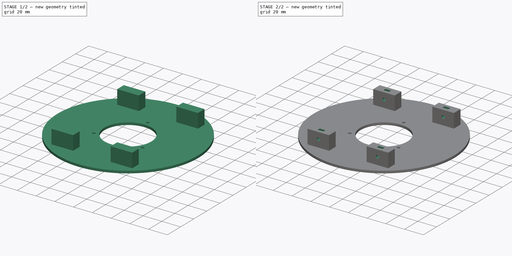
[diagram: build sequence overview — one tinted view per stage of 2, left to right]
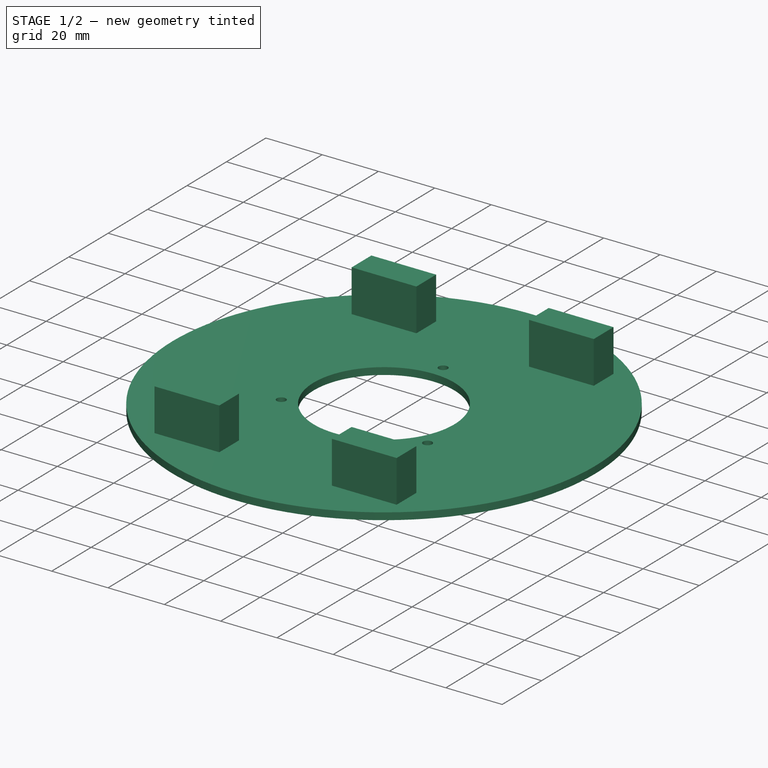
[diagram: stage 1 of 2 — iso view after this stage's code; geometry added in this stage tinted green]
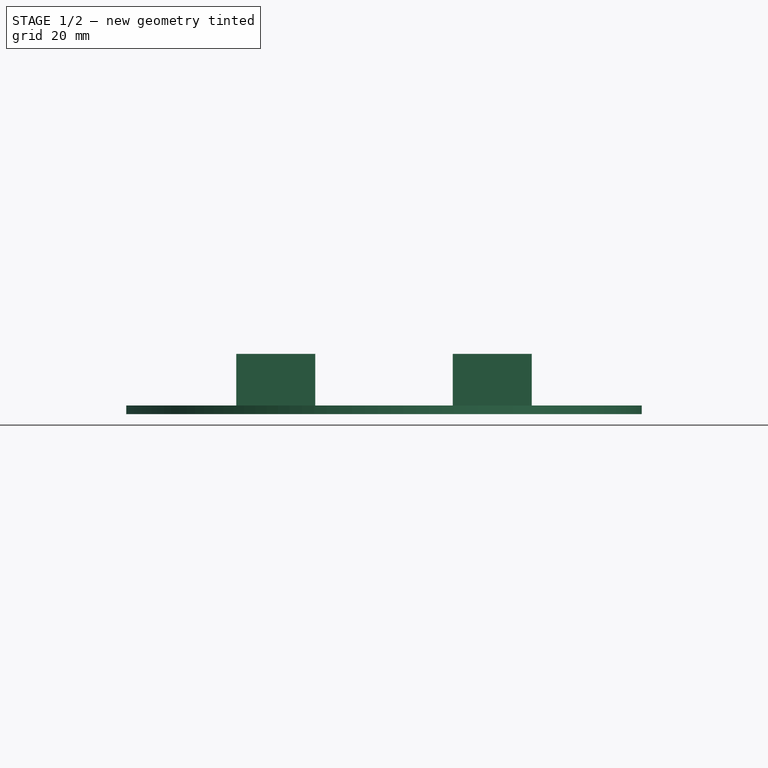
[diagram: stage 1 of 2 — front view after this stage's code; geometry added in this stage tinted green]
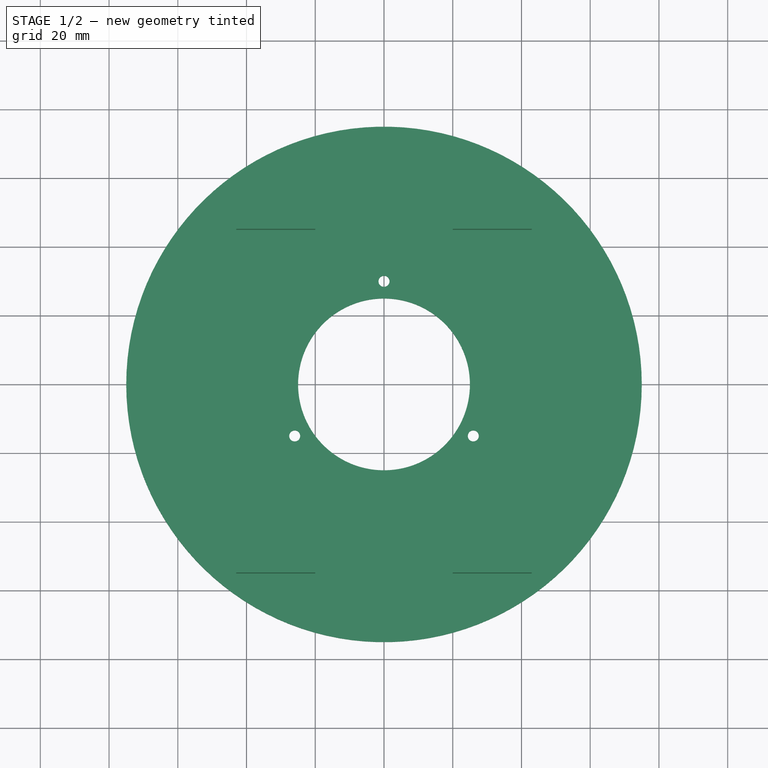
[diagram: stage 1 of 2 — top view after this stage's code; geometry added in this stage tinted green]
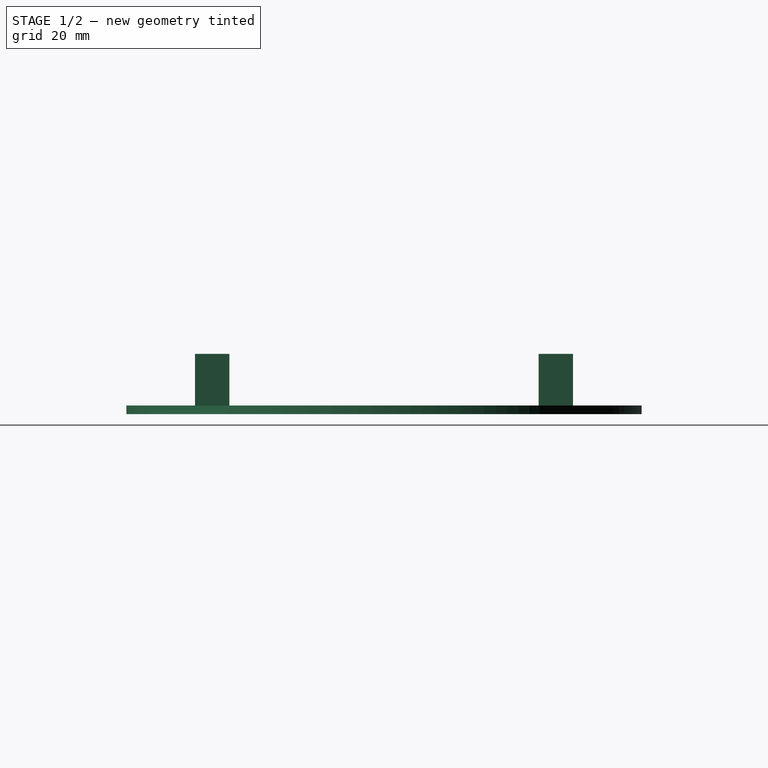
[diagram: stage 1 of 2 — right view after this stage's code; geometry added in this stage tinted green]
FCSTD DOCUMENT  (FreeCAD 0.16RUnknown)
Label: Art1TopP2
License: All rights reserved
LicenseURL: http://en.wikipedia.org/wiki/All_rights_reserved
objects: Sketcher::SketchObject×4, PartDesign::Pad×2, PartDesign::Pocket×2
note: 12 computed .brp shape members not serialized (recipe doc carries the construction recipe); baked Part::Feature solids carry a one-line shape summary decoded from their .brp

FEATURE [Sketcher::SketchObject] Sketch
  sketch-geometry (9):
    g0: Circle CenterX=0 CenterY=0 CenterZ=0 NormalX=0 NormalY=0 NormalZ=1 Radius=75
    g1: Circle CenterX=0 CenterY=0 CenterZ=0 NormalX=0 NormalY=0 NormalZ=1 Radius=25
    g2: Circle [constr] CenterX=0 CenterY=0 CenterZ=0 NormalX=0 NormalY=0 NormalZ=1 Radius=30
    g3: Circle CenterX=0 CenterY=30 CenterZ=0 NormalX=0 NormalY=0 NormalZ=1 Radius=1.6
    g4: Circle CenterX=-25.9808 CenterY=-15 CenterZ=0 NormalX=0 NormalY=0 NormalZ=1 Radius=1.6
    g5: Circle CenterX=25.9808 CenterY=-15 CenterZ=0 NormalX=0 NormalY=0 NormalZ=1 Radius=1.6
    g6: LineSegment [constr] StartX=0 StartY=30 StartZ=0 EndX=0 EndY=0 EndZ=0
    g7: LineSegment [constr] StartX=-25.9808 StartY=-15 StartZ=0 EndX=0 EndY=0 EndZ=0
    g8: LineSegment [constr] StartX=0 StartY=0 StartZ=0 EndX=25.9808 EndY=-15 EndZ=0
  constraints (22):
    c: Coincident(g0,g-1)
    c: PointOnObject(g1,g-1)
    c: Coincident(g0,g1)
    c: Coincident(g2,g-1)
    c: PointOnObject(g3,g2)
    c: PointOnObject(g4,g2)
    c: PointOnObject(g5,g2)
    c: Radius(g0) = 75
    c: Radius(g1) = 25
    c: Radius(g2) = 30
    c: Equal(g3,g4)
    c: Equal(g4,g5)
    c: Radius(g3) = 1.6
    c: Coincident(g6,g3)
    c: Coincident(g6,g-1)
    c: Coincident(g7,g4)
    c: Coincident(g7,g-1)
    c: Coincident(g8,g-1)
    c: Coincident(g8,g5)
    c: Angle(g6,g7) = 2.0944
    c: Angle(g7,g8) = 2.0944
    c: PointOnObject(g3,g-2)
FEATURE [PartDesign::Pad] Pad  label="base"
  Length = 2.5
  Length2 = 100
  Sketch = -> Sketch
  Type = 0
FEATURE [Sketcher::SketchObject] Sketch001
  Placement = pos=(0,0,2.5) rot=(0,0,1;0rad)
  Support = -> Pad [Face7]
  sketch-geometry (16):
    g0: LineSegment StartX=-43 StartY=55 StartZ=0 EndX=-20 EndY=55 EndZ=0
    g1: LineSegment StartX=-20 StartY=55 StartZ=0 EndX=-20 EndY=45 EndZ=0
    g2: LineSegment StartX=-20 StartY=45 StartZ=0 EndX=-43 EndY=45 EndZ=0
    g3: LineSegment StartX=-43 StartY=45 StartZ=0 EndX=-43 EndY=55 EndZ=0
    g4: LineSegment StartX=20 StartY=55 StartZ=0 EndX=43 EndY=55 EndZ=0
    g5: LineSegment StartX=43 StartY=55 StartZ=0 EndX=43 EndY=45 EndZ=0
    g6: LineSegment StartX=43 StartY=45 StartZ=0 EndX=20 EndY=45 EndZ=0
    g7: LineSegment StartX=20 StartY=45 StartZ=0 EndX=20 EndY=55 EndZ=0
    g8: LineSegment StartX=-43 StartY=-45 StartZ=0 EndX=-20 EndY=-45 EndZ=0
    g9: LineSegment StartX=-20 StartY=-45 StartZ=0 EndX=-20 EndY=-55 EndZ=0
    g10: LineSegment StartX=-20 StartY=-55 StartZ=0 EndX=-43 EndY=-55 EndZ=0
    g11: LineSegment StartX=-43 StartY=-55 StartZ=0 EndX=-43 EndY=-45 EndZ=0
    g12: LineSegment StartX=20 StartY=-45 StartZ=0 EndX=43 EndY=-45 EndZ=0
    g13: LineSegment StartX=43 StartY=-45 StartZ=0 EndX=43 EndY=-55 EndZ=0
    g14: LineSegment StartX=43 StartY=-55 StartZ=0 EndX=20 EndY=-55 EndZ=0
    g15: LineSegment StartX=20 StartY=-55 StartZ=0 EndX=20 EndY=-45 EndZ=0
  constraints (45):
    c: Coincident(g0,g1)
    c: Coincident(g1,g2)
    c: Coincident(g2,g3)
    c: Coincident(g3,g0)
    c: Horizontal(g0)
    c: Horizontal(g2)
    c: Vertical(g1)
    c: Vertical(g3)
    c: Coincident(g4,g5)
    c: Coincident(g5,g6)
    c: Coincident(g6,g7)
    c: Coincident(g7,g4)
    c: Horizontal(g4)
    c: Horizontal(g6)
    c: Vertical(g5)
    c: Vertical(g7)
    c: Coincident(g8,g9)
    c: Coincident(g9,g10)
    c: Coincident(g10,g11)
    c: Coincident(g11,g8)
    c: Horizontal(g8)
    c: Horizontal(g10)
    c: Vertical(g9)
    c: Vertical(g11)
    c: Coincident(g12,g13)
    c: Coincident(g13,g14)
    c: Coincident(g14,g15)
    c: Coincident(g15,g12)
    c: Horizontal(g12)
    c: Horizontal(g14)
    c: Vertical(g13)
    c: Vertical(g15)
    c: Equal(g4,g0)
    c: Equal(g3,g7)
    c: Equal(g8,g12)
    c: Equal(g11,g15)
    c: Equal(g0,g8)
    c: Equal(g3,g11)
    c: DistanceX(g4,g4) = 23
    c: DistanceY(g5,g5) = 10
    c: Symmetric(g0,g4,g-2)
    c: Symmetric(g1,g8,g-1)
    c: Symmetric(g8,g12,g-2)
    c: DistanceX(g6) = 20
    c: DistanceY(g6) = 45
FEATURE [PartDesign::Pad] Pad001  label="cubes"
  Length = 15
  Length2 = 100
  Sketch = -> Sketch001
  Type = 0
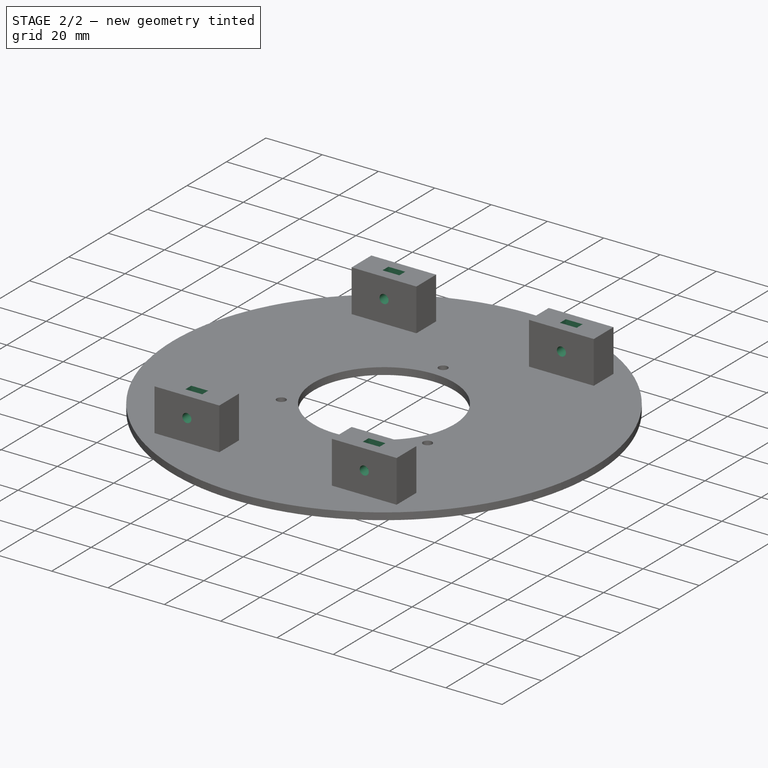
[diagram: stage 2 of 2 — iso view after this stage's code; geometry added in this stage tinted green]
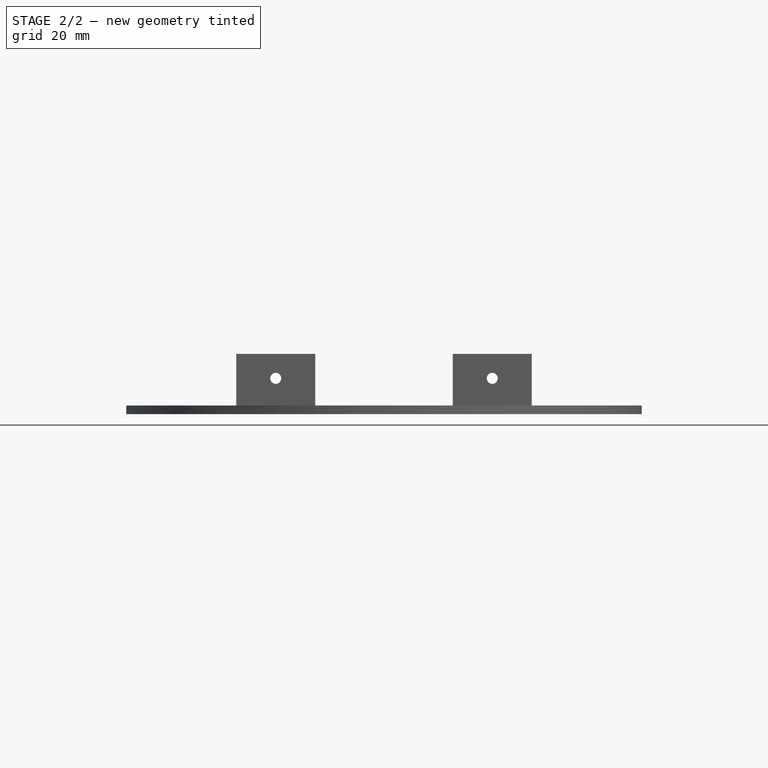
[diagram: stage 2 of 2 — front view after this stage's code; geometry added in this stage tinted green]
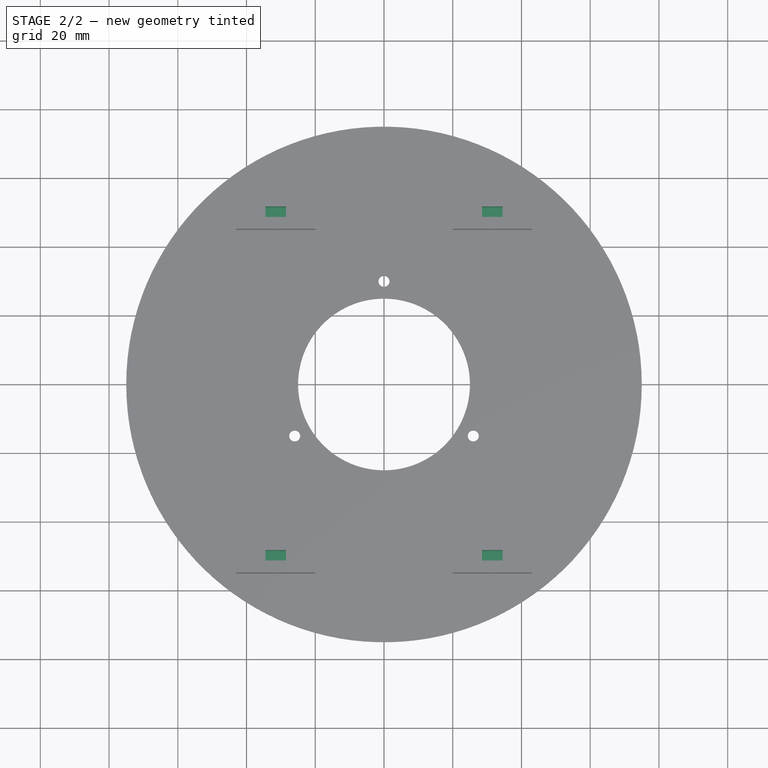
[diagram: stage 2 of 2 — top view after this stage's code; geometry added in this stage tinted green]
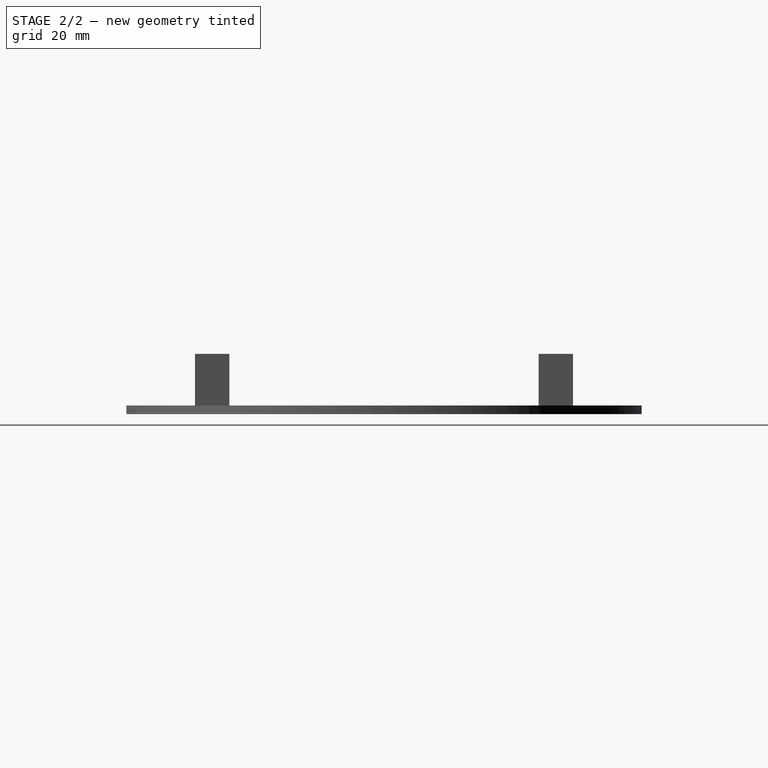
[diagram: stage 2 of 2 — right view after this stage's code; geometry added in this stage tinted green]
FEATURE [Sketcher::SketchObject] Sketch002
  Placement = pos=(0,-55,0) rot=(1,0,0;1.5708rad)
  Support = -> Pad001 [Face21]
  sketch-geometry (2):
    g0: Circle CenterX=31.5 CenterY=10.4 CenterZ=0 NormalX=0 NormalY=0 NormalZ=1 Radius=1.6
    g1: Circle CenterX=-31.5 CenterY=10.4 CenterZ=0 NormalX=0 NormalY=0 NormalZ=1 Radius=1.6
  constraints (5):
    c: Radius(g0) = 1.6
    c: DistanceX(g0) = 31.5
    c: DistanceY(g0) = 10.4
    c: Equal(g1,g0)
    c: Symmetric(g0,g1,g-2)
FEATURE [PartDesign::Pocket] Pocket  label="cylindricalHoles"
  Length = 5
  Sketch = -> Sketch002
  Type = 1
FEATURE [Sketcher::SketchObject] Sketch003
  Placement = pos=(0,0,17.5) rot=(0,0,1;0rad)
  Support = -> Pocket [Face30]
  sketch-geometry (16):
    g0: LineSegment StartX=28.5 StartY=-48.5 StartZ=0 EndX=34.5 EndY=-48.5 EndZ=0
    g1: LineSegment StartX=34.5 StartY=-48.5 StartZ=0 EndX=34.5 EndY=-51.5 EndZ=0
    g2: LineSegment StartX=34.5 StartY=-51.5 StartZ=0 EndX=28.5 EndY=-51.5 EndZ=0
    g3: LineSegment StartX=28.5 StartY=-51.5 StartZ=0 EndX=28.5 EndY=-48.5 EndZ=0
    g4: LineSegment StartX=-34.5 StartY=-48.5 StartZ=0 EndX=-28.5 EndY=-48.5 EndZ=0
    g5: LineSegment StartX=-28.5 StartY=-48.5 StartZ=0 EndX=-28.5 EndY=-51.5 EndZ=0
    g6: LineSegment StartX=-28.5 StartY=-51.5 StartZ=0 EndX=-34.5 EndY=-51.5 EndZ=0
    g7: LineSegment StartX=-34.5 StartY=-51.5 StartZ=0 EndX=-34.5 EndY=-48.5 EndZ=0
    g8: LineSegment StartX=28.5 StartY=51.5 StartZ=0 EndX=34.5 EndY=51.5 EndZ=0
    g9: LineSegment StartX=34.5 StartY=51.5 StartZ=0 EndX=34.5 EndY=48.5 EndZ=0
    g10: LineSegment StartX=34.5 StartY=48.5 StartZ=0 EndX=28.5 EndY=48.5 EndZ=0
    g11: LineSegment StartX=28.5 StartY=48.5 StartZ=0 EndX=28.5 EndY=51.5 EndZ=0
    g12: LineSegment StartX=-34.5 StartY=51.5 StartZ=0 EndX=-28.5 EndY=51.5 EndZ=0
    g13: LineSegment StartX=-28.5 StartY=51.5 StartZ=0 EndX=-28.5 EndY=48.5 EndZ=0
    g14: LineSegment StartX=-28.5 StartY=48.5 StartZ=0 EndX=-34.5 EndY=48.5 EndZ=0
    g15: LineSegment StartX=-34.5 StartY=48.5 StartZ=0 EndX=-34.5 EndY=51.5 EndZ=0
  constraints (45):
    c: Coincident(g0,g1)
    c: Coincident(g1,g2)
    c: Coincident(g2,g3)
    c: Coincident(g3,g0)
    c: Horizontal(g0)
    c: Horizontal(g2)
    c: Vertical(g1)
    c: Vertical(g3)
    c: Coincident(g4,g5)
    c: Coincident(g5,g6)
    c: Coincident(g6,g7)
    c: Coincident(g7,g4)
    c: Horizontal(g4)
    c: Horizontal(g6)
    c: Vertical(g5)
    c: Vertical(g7)
    c: Coincident(g8,g9)
    c: Coincident(g9,g10)
    c: Coincident(g10,g11)
    c: Coincident(g11,g8)
    c: Horizontal(g8)
    c: Horizontal(g10)
    c: Vertical(g9)
    c: Vertical(g11)
    c: Coincident(g12,g13)
    c: Coincident(g13,g14)
    c: Coincident(g14,g15)
    c: Coincident(g15,g12)
    c: Horizontal(g12)
    c: Horizontal(g14)
    c: Vertical(g13)
    c: Vertical(g15)
    c: Equal(g8,g12)
    c: Equal(g11,g15)
    c: Symmetric(g8,g12,g-2)
    c: Symmetric(g13,g4,g-1)
    c: Symmetric(g4,g0,g-2)
    c: Equal(g4,g0)
    c: Equal(g3,g7)
    c: Equal(g15,g7)
    c: DistanceX(g10) = 28.5
    c: DistanceY(g10) = 48.5
    c: DistanceX(g8,g8) = 6
    c: DistanceY(g9,g9) = 3
    c: Equal(g4,g14)
FEATURE [PartDesign::Pocket] Pocket001  label="nutHoles"
  Length = 10
  Sketch = -> Sketch003
  Type = 0
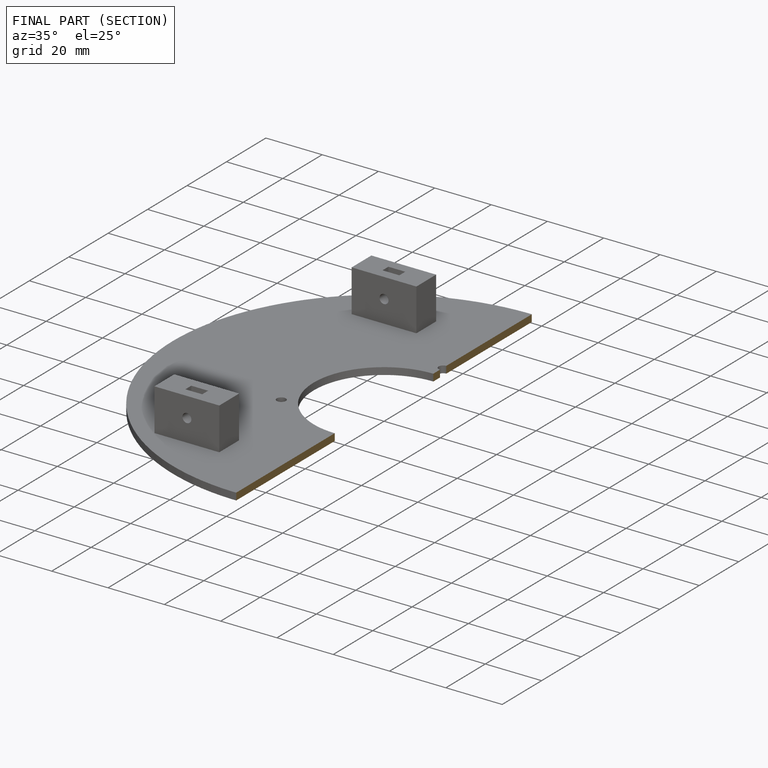
[diagram: finished part — half-section view (interior)]
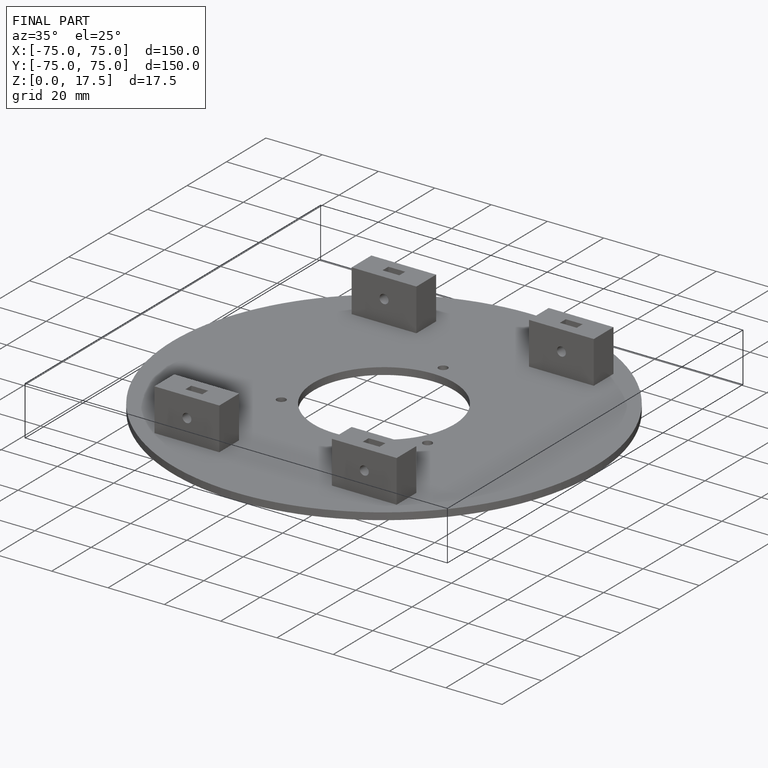
[diagram: finished part — iso view with bounding-box wireframe]
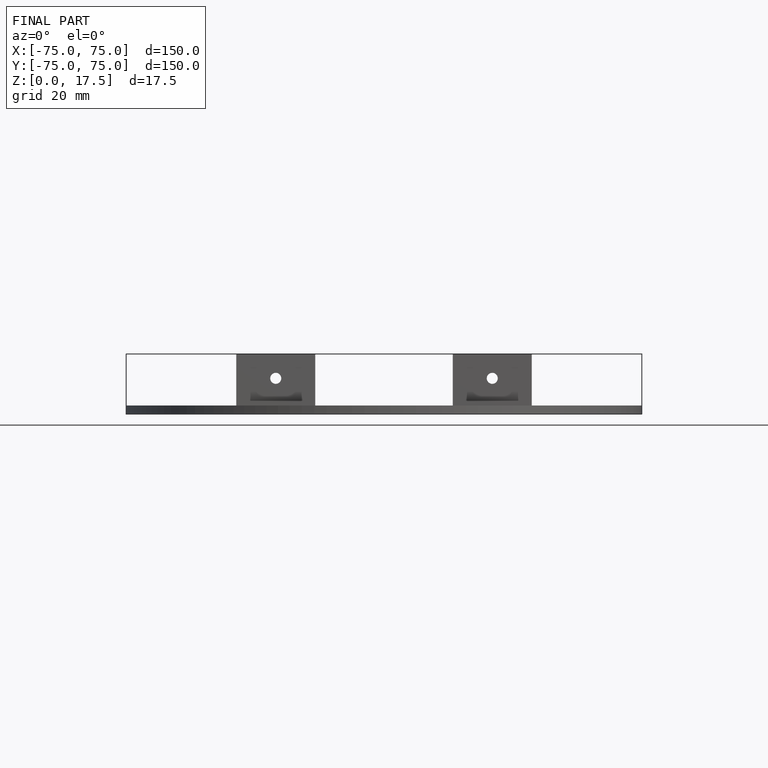
[diagram: finished part — front view with bounding-box wireframe]
